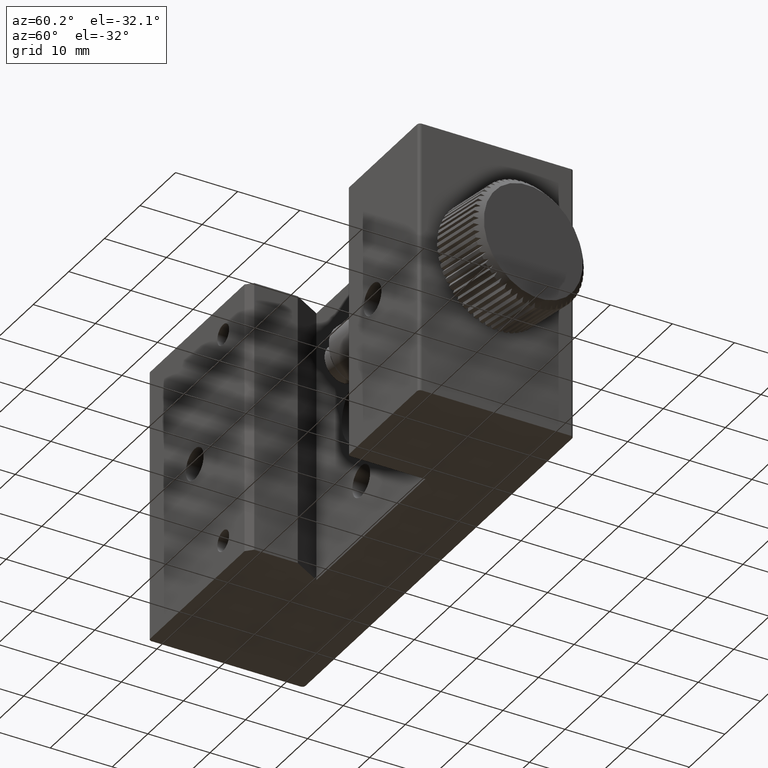
[diagram: clean part render]
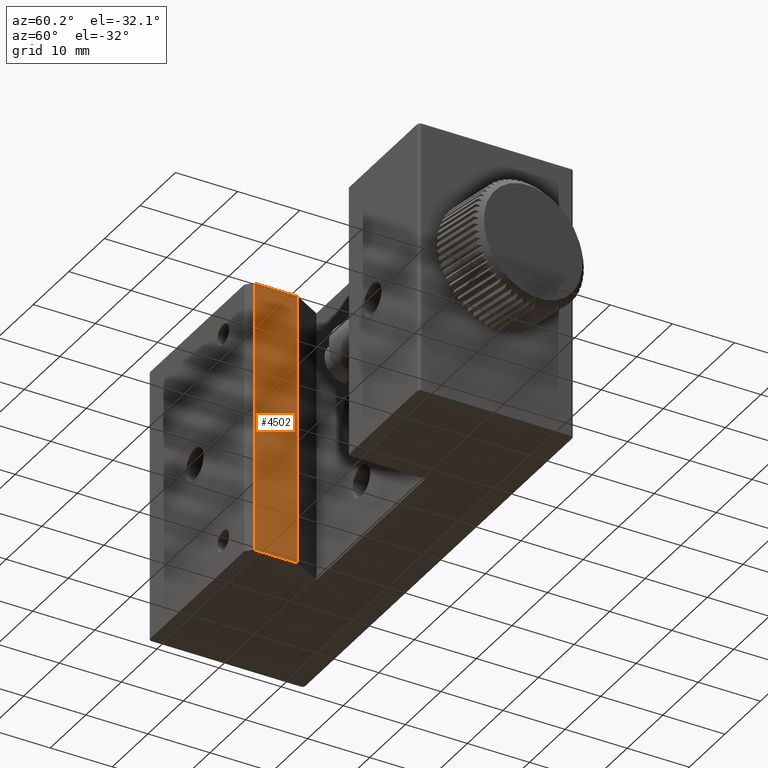
[diagram: same view with one face highlighted and labeled with its STEP entity id]
A machine part, auxiliary view. The second image highlights one B-rep face of the part: STEP entity #4502.
In plain terms, the highlighted planar face has unit normal (1, 0, 0).
Its self-contained STEP definition (entity closure, byte-faithful):
#38 = FACE_OUTER_BOUND ( 'NONE', #4987, .T. ) ;
#1441 = EDGE_CURVE ( 'NONE', #5121, #5058, #1946, .T. ) ;
#1450 = EDGE_CURVE ( 'NONE', #5058, #5062, #1968, .T. ) ;
#1489 = CARTESIAN_POINT ( 'NONE',  ( -32.72326483554944300, -2.942050404251628700, -22.00000000000000000 ) ) ;
#1496 = DIRECTION ( 'NONE',  ( 0.0000000000000000000, 0.0000000000000000000, 1.000000000000000000 ) ) ;
#1573 = CARTESIAN_POINT ( 'NONE',  ( -32.72326483554944300, -9.942050404251684600, -22.00000000000000000 ) ) ;
#1586 = DIRECTION ( 'NONE',  ( 0.0000000000000000000, 1.000000000000000000, 0.0000000000000000000 ) ) ;
#1946 = LINE ( 'NONE', #1573, #1957 ) ;
#1957 = VECTOR ( 'NONE', #1586, 1000.000000000000000 ) ;
#1968 = LINE ( 'NONE', #1489, #1970 ) ;
#1970 = VECTOR ( 'NONE', #1496, 1000.000000000000000 ) ;
#2956 = CARTESIAN_POINT ( 'NONE',  ( -32.72326483554944300, -2.942050404251628700, -22.00000000000000000 ) ) ;
#2960 = CARTESIAN_POINT ( 'NONE',  ( -32.72326483554944300, -2.942050404251628700, 22.00000000000000000 ) ) ;
#2965 = CARTESIAN_POINT ( 'NONE',  ( -32.72326483554944300, -9.942050404251684600, -22.00000000000000000 ) ) ;
#4204 = LINE ( 'NONE', #5505, #4209 ) ;
#4209 = VECTOR ( 'NONE', #5507, 1000.000000000000000 ) ;
#4216 = LINE ( 'NONE', #5510, #4218 ) ;
#4218 = VECTOR ( 'NONE', #5518, 1000.000000000000000 ) ;
#4482 = VERTEX_POINT ( 'NONE', #4764 ) ;
#4502 = ADVANCED_FACE ( 'NONE', ( #38 ), #4835, .T. ) ;
#4764 = CARTESIAN_POINT ( 'NONE',  ( -32.72326483554944300, -9.942050404251684600, 22.00000000000000000 ) ) ;
#4828 = CARTESIAN_POINT ( 'NONE',  ( -32.72326483554944300, -9.942050404251684600, -22.00000000000000000 ) ) ;
#4835 = PLANE ( 'NONE',  #7094 ) ;
#4837 = DIRECTION ( 'NONE',  ( 1.000000000000000000, 0.0000000000000000000, 0.0000000000000000000 ) ) ;
#4838 = DIRECTION ( 'NONE',  ( 0.0000000000000000000, 0.0000000000000000000, -1.000000000000000000 ) ) ;
#4987 = EDGE_LOOP ( 'NONE', ( #5302, #5304, #5306, #5309 ) ) ;
#5058 = VERTEX_POINT ( 'NONE', #2956 ) ;
#5062 = VERTEX_POINT ( 'NONE', #2960 ) ;
#5121 = VERTEX_POINT ( 'NONE', #2965 ) ;
#5302 = ORIENTED_EDGE ( 'NONE', *, *, #6245, .F. ) ;
#5304 = ORIENTED_EDGE ( 'NONE', *, *, #6239, .F. ) ;
#5306 = ORIENTED_EDGE ( 'NONE', *, *, #1441, .T. ) ;
#5309 = ORIENTED_EDGE ( 'NONE', *, *, #1450, .T. ) ;
#5505 = CARTESIAN_POINT ( 'NONE',  ( -32.72326483554944300, -9.942050404251684600, -22.00000000000000000 ) ) ;
#5507 = DIRECTION ( 'NONE',  ( 0.0000000000000000000, 0.0000000000000000000, 1.000000000000000000 ) ) ;
#5510 = CARTESIAN_POINT ( 'NONE',  ( -32.72326483554944300, -9.942050404251684600, 22.00000000000000000 ) ) ;
#5518 = DIRECTION ( 'NONE',  ( 0.0000000000000000000, 1.000000000000000000, 0.0000000000000000000 ) ) ;
#6239 = EDGE_CURVE ( 'NONE', #5121, #4482, #4204, .T. ) ;
#6245 = EDGE_CURVE ( 'NONE', #4482, #5062, #4216, .T. ) ;
#7094 = AXIS2_PLACEMENT_3D ( 'NONE', #4828, #4837, #4838 ) ;